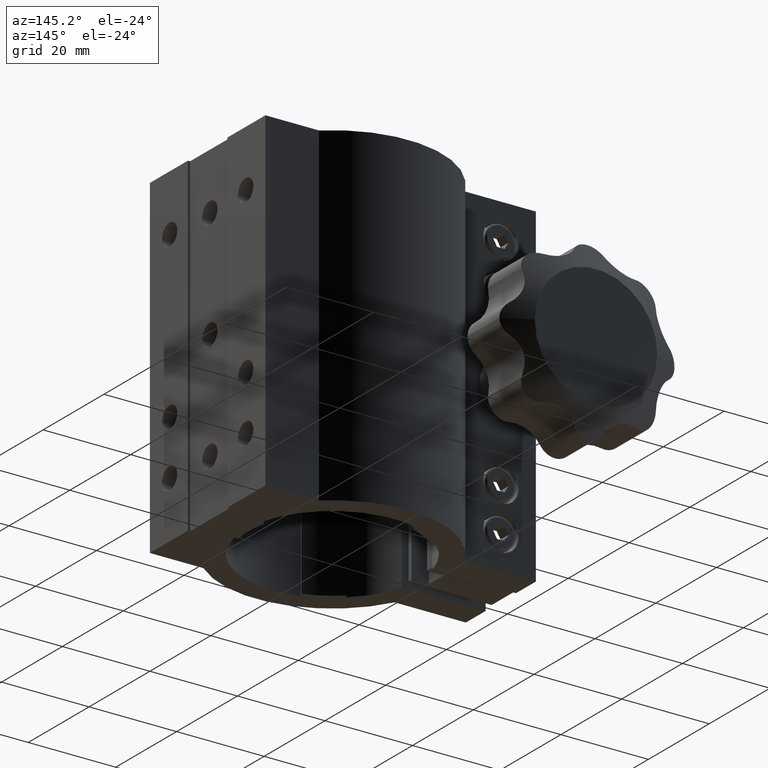
[diagram: clean part render]
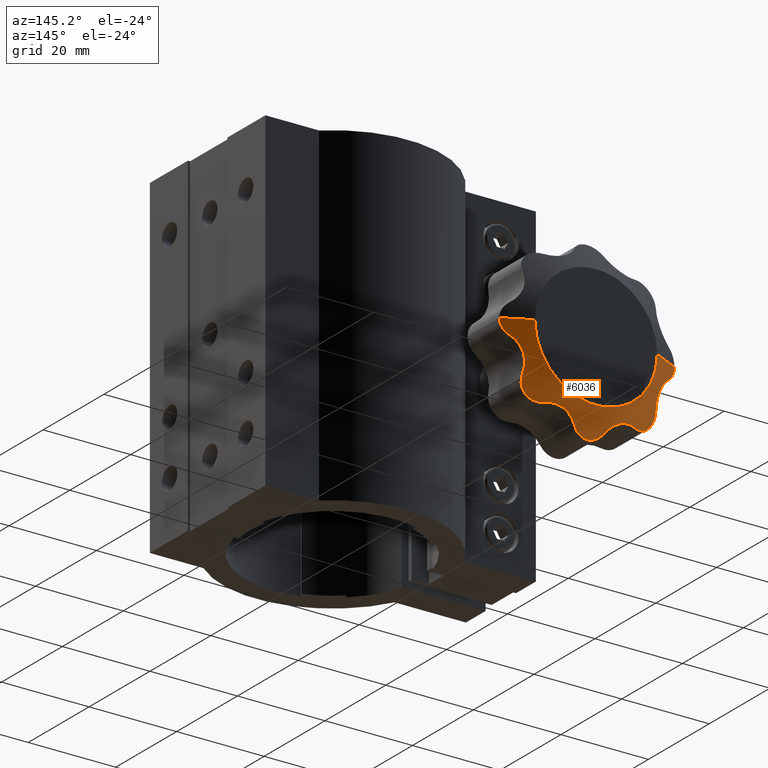
[diagram: same view with one face highlighted and labeled with its STEP entity id]
A machine part, auxiliary view. The second image highlights one B-rep face of the part: STEP entity #6036.
In plain terms, the highlighted conical surface has half-angle 63.435 deg.
Its self-contained STEP definition (entity closure, byte-faithful):
#67 = ORIENTED_EDGE ( 'NONE', *, *, #1330, .T. ) ;
#164 = CARTESIAN_POINT ( 'NONE',  ( -34.13825877744382400, 37.72424744362883300, 18.55445544511340500 ) ) ;
#208 = CARTESIAN_POINT ( 'NONE',  ( -41.29270235043170300, 38.68197548295553600, 22.93565509200134800 ) ) ;
#210 = EDGE_CURVE ( 'NONE', #2266, #10143, #1075, .T. ) ;
#215 = CARTESIAN_POINT ( 'NONE',  ( -34.27574192347811500, 37.75911893758390600, 18.63958989632183700 ) ) ;
#268 = DIRECTION ( 'NONE',  ( -0.8944271909999157400, -0.4472135954999582100, 8.417409745864919000E-017 ) ) ;
#302 = CARTESIAN_POINT ( 'NONE',  ( -35.40478620523411700, 38.22485992281704600, 19.74647206857901700 ) ) ;
#651 = CARTESIAN_POINT ( 'NONE',  ( -34.54019230307984900, 37.83613952477270500, 18.82641046975630400 ) ) ;
#740 = CARTESIAN_POINT ( 'NONE',  ( -45.30747206479043100, 37.56706851643831900, 23.15944995574650600 ) ) ;
#799 = CARTESIAN_POINT ( 'NONE',  ( -47.33547936566709100, 38.24033585891623200, 27.47167209282339000 ) ) ;
#991 = CARTESIAN_POINT ( 'NONE',  ( -51.88119329317200400, 37.58791492571312900, 36.68577337741093200 ) ) ;
#1075 = B_SPLINE_CURVE_WITH_KNOTS ( 'NONE', 3,
 ( #12926, #12766, #12711, #13026, #13076, #13922, #14080, #14193, #14239, #14293, #14344, #14404, #15066, #15117, #15382, #15493, #15609, #15731, #14027, #164, #215, #651, #11683, #3881, #4298, #5228 ),
 .UNSPECIFIED., .F., .F.,
 ( 4, 2, 2, 2, 2, 2, 2, 2, 2, 2, 2, 2, 4 ),
 ( 2.535578231130869400E-007, 0.0009895285573015483800, 0.001978803556779983600, 0.002473441056519201000, 0.002968078556258418100, 0.003957353555736854400, 0.004451991055476061900, 0.004946628555215269400, 0.005441266054954476000, 0.005935903554693682700, 0.006430541054432889300, 0.006925178554172096800, 0.007914453553650511000 ),
 .UNSPECIFIED. ) ;
#1080 = ORIENTED_EDGE ( 'NONE', *, *, #9072, .T. ) ;
#1125 = ORIENTED_EDGE ( 'NONE', *, *, #1673, .T. ) ;
#1128 = CARTESIAN_POINT ( 'NONE',  ( -12.26273394888004700, 37.56529357583939100, 36.85875537139499900 ) ) ;
#1251 = CARTESIAN_POINT ( 'NONE',  ( -16.78629150101523100, 37.98015667156400400, 26.68629150101528300 ) ) ;
#1300 = CARTESIAN_POINT ( 'NONE',  ( -22.86946047692452000, 38.67214242902282000, 22.93569900874312100 ) ) ;
#1330 = EDGE_CURVE ( 'NONE', #1826, #16269, #2067, .T. ) ;
#1430 = EDGE_CURVE ( 'NONE', #7146, #9624, #12757, .T. ) ;
#1493 = CARTESIAN_POINT ( 'NONE',  ( -42.62832790717664700, 38.24033585891623200, 22.76452063433290400 ) ) ;
#1608 = CONICAL_SURFACE ( 'NONE', #7844, 14.00000000000002700, 1.107148717794089500 ) ;
#1673 = EDGE_CURVE ( 'NONE', #16269, #15725, #5315, .T. ) ;
#1678 = CARTESIAN_POINT ( 'NONE',  ( -47.19919841767011800, 38.74450016324943400, 29.12827557199965900 ) ) ;
#1826 = VERTEX_POINT ( 'NONE', #11770 ) ;
#1846 = CARTESIAN_POINT ( 'NONE',  ( -21.52964335520772800, 38.22485992281721000, 22.75596988302155700 ) ) ;
#1997 = CARTESIAN_POINT ( 'NONE',  ( -46.00166590177382600, 37.50024724159747100, 23.61814102786623300 ) ) ;
#2019 = CARTESIAN_POINT ( 'NONE',  ( -21.25090003431771300, 38.12378131236740600, 22.70325044055187300 ) ) ;
#2067 = B_SPLINE_CURVE_WITH_KNOTS ( 'NONE', 3,
 ( #12588, #13736, #13627, #12526 ),
 .UNSPECIFIED., .F., .F.,
 ( 4, 4 ),
 ( 2.141342634865595500E-007, 0.001445184654488001300 ),
 .UNSPECIFIED. ) ;
#2138 = CARTESIAN_POINT ( 'NONE',  ( -20.96848050212808800, 38.03226716162000500, 22.68021743918745500 ) ) ;
#2254 = CARTESIAN_POINT ( 'NONE',  ( -52.05752426620984600, 37.51698547041289800, 37.33173219567211000 ) ) ;
#2266 = VERTEX_POINT ( 'NONE', #13395 ) ;
#2392 = CARTESIAN_POINT ( 'NONE',  ( -12.43301073186956200, 37.63407384865928400, 36.39367525027044100 ) ) ;
#2419 = ORIENTED_EDGE ( 'NONE', *, *, #12149, .F. ) ;
#2529 = ORIENTED_EDGE ( 'NONE', *, *, #210, .T. ) ;
#2573 = CARTESIAN_POINT ( 'NONE',  ( -24.95603898682053400, 39.03961434932760700, 22.64445897357252200 ) ) ;
#2617 = CARTESIAN_POINT ( 'NONE',  ( -20.10427503861103200, 37.79336269671962600, 22.73410328289345000 ) ) ;
#2670 = CARTESIAN_POINT ( 'NONE',  ( -19.53860324330462100, 37.67028065277789000, 22.87470230777547500 ) ) ;
#2749 = CARTESIAN_POINT ( 'NONE',  ( -15.82382242778244200, 38.96184166140069700, 32.79438930931748800 ) ) ;
#2762 = CARTESIAN_POINT ( 'NONE',  ( -19.26113412668364000, 37.61997098023989800, 22.97646615222423300 ) ) ;
#2777 = CARTESIAN_POINT ( 'NONE',  ( -18.72795586698636700, 37.54409824499444400, 23.24359436756052200 ) ) ;
#3082 = CARTESIAN_POINT ( 'NONE',  ( -47.19919841767011100, 38.67138711132069100, 28.84621229782713300 ) ) ;
#3109 = CARTESIAN_POINT ( 'NONE',  ( -18.47935679384912100, 37.51941664412007100, 23.40497773994198400 ) ) ;
#3162 = CARTESIAN_POINT ( 'NONE',  ( -18.13349673707108400, 37.50185774314778100, 23.68880557513929500 ) ) ;
#3258 = CARTESIAN_POINT ( 'NONE',  ( -42.94026814796041700, 38.12596980974666400, 22.70205094417410400 ) ) ;
#3314 = CARTESIAN_POINT ( 'NONE',  ( -46.68478337521379000, 37.51702702024484600, 24.36072772368681100 ) ) ;
#3389 = CARTESIAN_POINT ( 'NONE',  ( -18.02204321241741200, 37.49930611596555300, 23.79123233458614500 ) ) ;
#3446 = CARTESIAN_POINT ( 'NONE',  ( -17.81326709489613300, 37.50102194031777700, 24.00607470777605800 ) ) ;
#3449 = CARTESIAN_POINT ( 'NONE',  ( -32.09999999999995900, 40.50000000000009200, 37.99999999999997900 ) ) ;
#3532 = CIRCLE ( 'NONE', #12653, 14.00000000000002700 ) ;
#3549 = CARTESIAN_POINT ( 'NONE',  ( -52.09963865927248600, 37.50018067036381800, 37.99999999999997900 ) ) ;
#3621 = CARTESIAN_POINT ( 'NONE',  ( -47.19919841767011100, 38.67138711132069100, 28.84621229782713300 ) ) ;
#3674 = CARTESIAN_POINT ( 'NONE',  ( -12.65513164865500800, 37.72452414048576200, 35.96060845117474300 ) ) ;
#3763 = B_SPLINE_CURVE_WITH_KNOTS ( 'NONE', 3,
 ( #10969, #12246, #4740, #13517, #6030, #14775, #7287, #16067, #8503, #991, #9795, #2254, #11030, #3549 ),
 .UNSPECIFIED., .F., .F.,
 ( 4, 2, 2, 2, 2, 2, 4 ),
 ( 2.519870533801398400E-007, 0.001001453526276143800, 0.001502054295887525700, 0.002002655065498907400, 0.002503255835110289300, 0.003003856604721671200, 0.004005058143944461100 ),
 .UNSPECIFIED. ) ;
#3843 = CARTESIAN_POINT ( 'NONE',  ( -26.89132669031028300, 38.96229445392995000, 21.72577786445342700 ) ) ;
#3881 = CARTESIAN_POINT ( 'NONE',  ( -35.02102367627738000, 38.01223660148920700, 19.24879063320790700 ) ) ;
#3993 = CARTESIAN_POINT ( 'NONE',  ( -16.74141061492611700, 39.04038282519002900, 30.86623930095832000 ) ) ;
#4008 = CARTESIAN_POINT ( 'NONE',  ( -17.71575373318423300, 37.50522552208781900, 24.11845504438325000 ) ) ;
#4030 = CARTESIAN_POINT ( 'NONE',  ( -17.53406576480386300, 37.52014831606369700, 24.35283612059560100 ) ) ;
#4067 = ORIENTED_EDGE ( 'NONE', *, *, #4842, .T. ) ;
#4193 = CARTESIAN_POINT ( 'NONE',  ( -17.44989216485911500, 37.53086793582882300, 24.47483759213882600 ) ) ;
#4284 = CARTESIAN_POINT ( 'NONE',  ( -16.85596988302094700, 38.22485992281610100, 27.42964335520466800 ) ) ;
#4292 = CARTESIAN_POINT ( 'NONE',  ( -17.29498128797716900, 37.55893272981352700, 24.72852698051643800 ) ) ;
#4298 = CARTESIAN_POINT ( 'NONE',  ( -35.22739763615313500, 38.11267213914771200, 19.48633271645867600 ) ) ;
#4353 = CARTESIAN_POINT ( 'NONE',  ( -17.22387635409282700, 37.57643872661848400, 24.86114526933706900 ) ) ;
#4410 = CARTESIAN_POINT ( 'NONE',  ( -17.03595072964978400, 37.63783749370312400, 25.26404472820857100 ) ) ;
#4502 = CARTESIAN_POINT ( 'NONE',  ( -43.73945824390314400, 37.88685030365030600, 22.69669351951544200 ) ) ;
#4557 = CARTESIAN_POINT ( 'NONE',  ( -47.01633345922389400, 37.58778657505550300, 24.94105235144984800 ) ) ;
#4740 = CARTESIAN_POINT ( 'NONE',  ( -50.82465163034925100, 38.02346039514780800, 35.05431335803857000 ) ) ;
#4842 = EDGE_CURVE ( 'NONE', #9818, #11074, #3532, .T. ) ;
#4875 = ORIENTED_EDGE ( 'NONE', *, *, #1430, .T. ) ;
#4931 = CARTESIAN_POINT ( 'NONE',  ( -12.92700158500896100, 37.83638424736710700, 35.55904693091230200 ) ) ;
#5093 = CARTESIAN_POINT ( 'NONE',  ( -27.94840457374428400, 38.65869961730823000, 20.80943283846006500 ) ) ;
#5114 = VERTEX_POINT ( 'NONE', #4284 ) ;
#5173 = CARTESIAN_POINT ( 'NONE',  ( -16.94279115474834200, 37.69049428759804200, 25.54075307990759900 ) ) ;
#5193 = CARTESIAN_POINT ( 'NONE',  ( -13.84647206857898800, 38.22485992281687600, 34.69521379476602600 ) ) ;
#5222 = CARTESIAN_POINT ( 'NONE',  ( -36.22092508249641400, 38.67023647834084000, 20.81617838025024300 ) ) ;
#5228 = CARTESIAN_POINT ( 'NONE',  ( -35.40478620523411700, 38.22485992281704600, 19.74647206857901700 ) ) ;
#5242 = CARTESIAN_POINT ( 'NONE',  ( -18.09999999999993400, 40.50000000000009200, 37.99999999999997900 ) ) ;
#5243 = CARTESIAN_POINT ( 'NONE',  ( -17.00406875406515900, 38.74575812781804300, 29.12517083562085000 ) ) ;
#5315 = B_SPLINE_CURVE_WITH_KNOTS ( 'NONE', 3,
 ( #3082, #1678, #14518, #12834, #11848, #11740, #11532, #11479, #10757, #10695, #10486, #10286, #10232, #9587, #9529, #9471 ),
 .UNSPECIFIED., .F., .F.,
 ( 4, 2, 2, 2, 2, 2, 2, 4 ),
 ( 0.001445184654488001300, 0.002318056163042964300, 0.003190927671597927100, 0.004063799180152889900, 0.004936670688707842300, 0.005809542197262796400, 0.006682413705817748800, 0.008428156722927654400 ),
 .UNSPECIFIED. ) ;
#5560 = CARTESIAN_POINT ( 'NONE',  ( -16.78629150101523100, 37.98015667156400400, 26.68629150101528300 ) ) ;
#5633 = EDGE_CURVE ( 'NONE', #9720, #1826, #12857, .T. ) ;
#5767 = CARTESIAN_POINT ( 'NONE',  ( -44.22546935347902800, 37.76518380246606200, 22.76647890536094800 ) ) ;
#5823 = CARTESIAN_POINT ( 'NONE',  ( -47.20479314949077600, 37.66557426353966800, 25.40112276749174600 ) ) ;
#5848 = CARTESIAN_POINT ( 'NONE',  ( -16.78629150101523100, 37.89551921886262400, 26.40142105751484200 ) ) ;
#6030 = CARTESIAN_POINT ( 'NONE',  ( -51.25541067797122700, 37.84370096366776400, 35.53681198573129100 ) ) ;
#6036 = ADVANCED_FACE ( 'NONE', ( #12825 ), #1608, .T. ) ;
#6224 = CARTESIAN_POINT ( 'NONE',  ( -13.34914336907249300, 38.01238578080722900, 35.07867091265918400 ) ) ;
#6291 = CARTESIAN_POINT ( 'NONE',  ( -16.85596988302094700, 38.22485992281610100, 27.42964335520466800 ) ) ;
#6390 = CARTESIAN_POINT ( 'NONE',  ( -28.60963906092754200, 38.34719524211941900, 20.02871853246509200 ) ) ;
#6414 = VERTEX_POINT ( 'NONE', #10510 ) ;
#6481 = ORIENTED_EDGE ( 'NONE', *, *, #14304, .T. ) ;
#6524 = CARTESIAN_POINT ( 'NONE',  ( -37.89220971458132700, 39.03813465946317500, 22.08227942649879300 ) ) ;
#6546 = CARTESIAN_POINT ( 'NONE',  ( -16.96910337782800200, 38.45966632413284000, 28.09830956798033300 ) ) ;
#6577 = ORIENTED_EDGE ( 'NONE', *, *, #14218, .T. ) ;
#6687 = CARTESIAN_POINT ( 'NONE',  ( -21.52964335520772800, 38.22485992281721000, 22.75596988302155700 ) ) ;
#6741 = CARTESIAN_POINT ( 'NONE',  ( -16.81742696439634300, 37.81913595337685800, 26.10934481720776600 ) ) ;
#6750 = ORIENTED_EDGE ( 'NONE', *, *, #5633, .T. ) ;
#7033 = CARTESIAN_POINT ( 'NONE',  ( -44.69828612999257400, 37.66569268401091400, 22.89502649657288600 ) ) ;
#7094 = CARTESIAN_POINT ( 'NONE',  ( -47.39676900332202800, 37.84158332470200700, 26.20088793460285400 ) ) ;
#7120 = CARTESIAN_POINT ( 'NONE',  ( -16.78629150101523100, 37.98015667156400400, 26.68629150101528300 ) ) ;
#7146 = VERTEX_POINT ( 'NONE', #7120 ) ;
#7175 = DIRECTION ( 'NONE',  ( -5.721188726105498500E-018, -1.000000000000000000, 5.431194649527626500E-017 ) ) ;
#7287 = CARTESIAN_POINT ( 'NONE',  ( -51.53300192077794200, 37.72941588972672400, 35.94127359051846300 ) ) ;
#7300 = CARTESIAN_POINT ( 'NONE',  ( -13.84647206857898800, 38.22485992281687600, 34.69521379476602600 ) ) ;
#7411 = CARTESIAN_POINT ( 'NONE',  ( -12.11050873953518300, 37.50420100701824600, 37.66657105954493500 ) ) ;
#7458 = CARTESIAN_POINT ( 'NONE',  ( -32.09999999999995900, 40.50000000000009200, 37.99999999999997900 ) ) ;
#7476 = CARTESIAN_POINT ( 'NONE',  ( -13.84647206857898800, 38.22485992281687600, 34.69521379476602600 ) ) ;
#7540 = CARTESIAN_POINT ( 'NONE',  ( -16.80962284197196500, 38.13599907208919100, 27.18459280970823500 ) ) ;
#7577 = CARTESIAN_POINT ( 'NONE',  ( -21.52964335520772800, 38.22485992281721000, 22.75596988302155700 ) ) ;
#7745 = EDGE_LOOP ( 'NONE', ( #2419, #4067, #14888, #14176, #6481, #6577, #4875, #1080, #2529, #13244, #6750, #67, #1125, #14593 ) ) ;
#7770 = CARTESIAN_POINT ( 'NONE',  ( -39.89794573085681900, 38.96594691532602900, 22.80387124742840400 ) ) ;
#7787 = CARTESIAN_POINT ( 'NONE',  ( -16.85596988302094700, 38.22485992281610100, 27.42964335520466800 ) ) ;
#7844 = AXIS2_PLACEMENT_3D ( 'NONE', #3449, #7175, #12186 ) ;
#8068 = CARTESIAN_POINT ( 'NONE',  ( -42.62832790717664700, 38.24033585891623200, 22.76452063433290400 ) ) ;
#8205 = VERTEX_POINT ( 'NONE', #7300 ) ;
#8265 = CARTESIAN_POINT ( 'NONE',  ( -45.15694850998777100, 37.58808820424991400, 23.08272396788173000 ) ) ;
#8319 = CARTESIAN_POINT ( 'NONE',  ( -47.39795324385065100, 38.12596214254290300, 27.15971093928270700 ) ) ;
#8333 = B_SPLINE_CURVE_WITH_KNOTS ( 'NONE', 3,
 ( #7577, #15076, #1300, #10086, #2573, #11323, #3843, #12623, #5093, #13868, #6390, #15130 ),
 .UNSPECIFIED., .F., .F.,
 ( 4, 2, 2, 2, 2, 4 ),
 ( 2.145863560860655200E-007, 0.002128633184701740400, 0.004257051783047394700, 0.006385470381393048900, 0.007449679680565873500, 0.008513888979738697100 ),
 .UNSPECIFIED. ) ;
#8503 = CARTESIAN_POINT ( 'NONE',  ( -51.75941062088805500, 37.63718249476199400, 36.37724670895964600 ) ) ;
#8637 = CARTESIAN_POINT ( 'NONE',  ( -12.18199555004974700, 37.53283897366456000, 37.17763075229706300 ) ) ;
#8684 = DIRECTION ( 'NONE',  ( 1.000000000000000000, 0.0000000000000000000, 0.0000000000000000000 ) ) ;
#8751 = VERTEX_POINT ( 'NONE', #15643 ) ;
#8760 = CARTESIAN_POINT ( 'NONE',  ( -16.78629150101523100, 38.05457517648059700, 26.93676728713118300 ) ) ;
#8895 = CARTESIAN_POINT ( 'NONE',  ( -20.39658133783738900, 37.86728663349224200, 22.69505758032207200 ) ) ;
#8897 = VECTOR ( 'NONE', #12868, 1000.000000000000000 ) ;
#8940 = B_SPLINE_CURVE_WITH_KNOTS ( 'NONE', 3,
 ( #13653, #14893, #7411, #16204, #8637, #1128, #9924, #2392, #11158, #3674, #12439, #4931, #13707, #6224, #14955, #7476 ),
 .UNSPECIFIED., .F., .F.,
 ( 4, 2, 2, 2, 2, 2, 2, 4 ),
 ( 0.003960287535763634700, 0.004454558287999424600, 0.004948829040235213700, 0.005443099792471003600, 0.005937370544706792700, 0.006431641296942583500, 0.006925912049178372500, 0.007914453553649942000 ),
 .UNSPECIFIED. ) ;
#9020 = CARTESIAN_POINT ( 'NONE',  ( -41.96868897340812800, 38.48217800965616700, 22.89662106390778000 ) ) ;
#9072 = EDGE_CURVE ( 'NONE', #9624, #2266, #8333, .T. ) ;
#9471 = CARTESIAN_POINT ( 'NONE',  ( -50.31776283181113700, 38.24033585891623200, 34.67154128362934500 ) ) ;
#9529 = CARTESIAN_POINT ( 'NONE',  ( -49.85641633162007500, 38.43962883246756200, 34.36414461511201100 ) ) ;
#9547 = CARTESIAN_POINT ( 'NONE',  ( -45.73824124013596300, 37.51709815624121100, 23.41443786194441000 ) ) ;
#9587 = CARTESIAN_POINT ( 'NONE',  ( -49.43210726996741000, 38.61011625043930500, 34.00363604922226600 ) ) ;
#9624 = VERTEX_POINT ( 'NONE', #6687 ) ;
#9720 = VERTEX_POINT ( 'NONE', #8068 ) ;
#9795 = CARTESIAN_POINT ( 'NONE',  ( -51.93334830073360600, 37.56690679288043100, 36.84656257091754800 ) ) ;
#9818 = VERTEX_POINT ( 'NONE', #14618 ) ;
#9924 = CARTESIAN_POINT ( 'NONE',  ( -12.31343870608171500, 37.58571358947044400, 36.70036810535545900 ) ) ;
#10086 = CARTESIAN_POINT ( 'NONE',  ( -24.27192648757830900, 38.96184153804584600, 22.81008190152809300 ) ) ;
#10143 = VERTEX_POINT ( 'NONE', #302 ) ;
#10224 = CARTESIAN_POINT ( 'NONE',  ( -46.09999999999998700, 40.50000000000009200, 37.99999999999997900 ) ) ;
#10232 = CARTESIAN_POINT ( 'NONE',  ( -48.85399775504214400, 38.81058220147537700, 33.37499517148441400 ) ) ;
#10239 = CARTESIAN_POINT ( 'NONE',  ( -14.92095314688409900, 38.67214230809198500, 33.87490815882829100 ) ) ;
#10286 = CARTESIAN_POINT ( 'NONE',  ( -48.67039366449297700, 38.86817951116550100, 33.14918560032052900 ) ) ;
#10336 = B_SPLINE_CURVE_WITH_KNOTS ( 'NONE', 3,
 ( #11462, #12760, #5222, #14021, #6524, #15265, #7770, #208, #9020, #1493 ),
 .UNSPECIFIED., .F., .F.,
 ( 4, 2, 2, 2, 4 ),
 ( 2.514968968866191000E-007, 0.002118744996039079900, 0.004237238495181272700, 0.006355731994323465500, 0.008474225493465659100 ),
 .UNSPECIFIED. ) ;
#10486 = CARTESIAN_POINT ( 'NONE',  ( -48.33500304504649800, 38.95881344617964700, 32.67954946959076100 ) ) ;
#10510 = CARTESIAN_POINT ( 'NONE',  ( -12.10000000000003200, 37.50000000000011400, 37.99999999999997900 ) ) ;
#10695 = CARTESIAN_POINT ( 'NONE',  ( -48.18181524195388500, 38.99239717512220700, 32.43446891246430400 ) ) ;
#10712 = CARTESIAN_POINT ( 'NONE',  ( -42.62832790717664700, 38.24033585891623200, 22.76452063433290400 ) ) ;
#10757 = CARTESIAN_POINT ( 'NONE',  ( -47.90504890645113500, 39.03472159707339300, 31.92325109288680800 ) ) ;
#10777 = CARTESIAN_POINT ( 'NONE',  ( -46.47931321446086600, 37.50011448571302700, 24.09531898611162900 ) ) ;
#10969 = CARTESIAN_POINT ( 'NONE',  ( -50.31776283181113700, 38.24033585891623200, 34.67154128362934500 ) ) ;
#10970 = B_SPLINE_CURVE_WITH_KNOTS ( 'NONE', 3,
 ( #5193, #11439, #10239, #2749, #11488, #3993, #12783, #5243, #14041, #6546, #15289, #7787 ),
 .UNSPECIFIED., .F., .F.,
 ( 4, 2, 2, 2, 2, 4 ),
 ( 2.514968969110977100E-007, 0.002128670117941410600, 0.004257088738985910700, 0.006385507360030409500, 0.007449716670552660600, 0.008513925981074910900 ),
 .UNSPECIFIED. ) ;
#11030 = CARTESIAN_POINT ( 'NONE',  ( -52.09963865927250000, 37.50018067036381100, 37.66222527571012100 ) ) ;
#11074 = VERTEX_POINT ( 'NONE', #5242 ) ;
#11158 = CARTESIAN_POINT ( 'NONE',  ( -12.50151586287644400, 37.66186732320739600, 36.24581991734358200 ) ) ;
#11200 = LINE ( 'NONE', #10224, #14554 ) ;
#11323 = CARTESIAN_POINT ( 'NONE',  ( -26.28416735945040400, 39.04038281899816100, 22.09550692938513100 ) ) ;
#11439 = CARTESIAN_POINT ( 'NONE',  ( -14.41066563442168800, 38.46940080767107200, 34.32426115510119800 ) ) ;
#11462 = CARTESIAN_POINT ( 'NONE',  ( -35.40478620523411700, 38.22485992281704600, 19.74647206857901700 ) ) ;
#11479 = CARTESIAN_POINT ( 'NONE',  ( -47.78056681594023300, 39.04337036135621700, 31.65460809510745600 ) ) ;
#11488 = CARTESIAN_POINT ( 'NONE',  ( -16.19044925722372600, 39.03961434304878300, 32.19353673450456200 ) ) ;
#11532 = CARTESIAN_POINT ( 'NONE',  ( -47.56825035853535900, 39.03421187767037300, 31.10816862586799700 ) ) ;
#11590 = EDGE_CURVE ( 'NONE', #10143, #9720, #10336, .T. ) ;
#11633 = EDGE_CURVE ( 'NONE', #11074, #6414, #12644, .T. ) ;
#11683 = CARTESIAN_POINT ( 'NONE',  ( -34.66672438758036600, 37.87824560731832700, 18.92797965623197600 ) ) ;
#11740 = CARTESIAN_POINT ( 'NONE',  ( -47.48044118487156600, 39.01670993358931100, 30.83155257149975600 ) ) ;
#11770 = CARTESIAN_POINT ( 'NONE',  ( -47.33547936566709100, 38.24033585891623200, 27.47167209282339000 ) ) ;
#11848 = CARTESIAN_POINT ( 'NONE',  ( -47.33982646533559800, 38.95749352928440600, 30.27179680078582200 ) ) ;
#11987 = CARTESIAN_POINT ( 'NONE',  ( -43.25710625937500700, 38.02355978083554800, 22.67678188941500400 ) ) ;
#12041 = CARTESIAN_POINT ( 'NONE',  ( -46.93961310875494100, 37.56684448148201500, 24.79080392035382700 ) ) ;
#12149 = EDGE_CURVE ( 'NONE', #9818, #8751, #11200, .T. ) ;
#12186 = DIRECTION ( 'NONE',  ( 1.000000000000000000, 0.0000000000000000000, 0.0000000000000000000 ) ) ;
#12246 = CARTESIAN_POINT ( 'NONE',  ( -50.58263873843442600, 38.12591447058601800, 34.84802895879927600 ) ) ;
#12439 = CARTESIAN_POINT ( 'NONE',  ( -12.74024568565808500, 37.75938828361680100, 35.82325431566175000 ) ) ;
#12490 = EDGE_CURVE ( 'NONE', #15725, #8751, #3763, .T. ) ;
#12526 = CARTESIAN_POINT ( 'NONE',  ( -47.19919841767011100, 38.67138711132069100, 28.84621229782713300 ) ) ;
#12588 = CARTESIAN_POINT ( 'NONE',  ( -47.33547936566709100, 38.24033585891623200, 27.47167209282339000 ) ) ;
#12623 = CARTESIAN_POINT ( 'NONE',  ( -27.70101675018860400, 38.74575806462180300, 21.05011257352799700 ) ) ;
#12644 = LINE ( 'NONE', #14073, #8897 ) ;
#12653 = AXIS2_PLACEMENT_3D ( 'NONE', #7458, #16246, #8684 ) ;
#12711 = CARTESIAN_POINT ( 'NONE',  ( -29.17884699603552800, 38.01230968559990200, 19.24896242957108000 ) ) ;
#12757 = B_SPLINE_CURVE_WITH_KNOTS ( 'NONE', 3,
 ( #5560, #5848, #6741, #5173, #4410, #4353, #4292, #4193, #4030, #4008, #3446, #3389, #3162, #3109, #2777, #2762, #2670, #2617, #8895, #2138, #2019, #1846 ),
 .UNSPECIFIED., .F., .F.,
 ( 4, 2, 2, 2, 2, 2, 2, 2, 2, 2, 4 ),
 ( 0.0007839105829735832200, 0.001675223161873554000, 0.002566535740773524500, 0.003012192030223515900, 0.003457848319673507200, 0.003903504609123498500, 0.004349160898573490300, 0.005240473477473487700, 0.006131786056373485100, 0.007023098635273483300, 0.007914411214173480700 ),
 .UNSPECIFIED. ) ;
#12760 = CARTESIAN_POINT ( 'NONE',  ( -35.77400903943106400, 38.46826047838232700, 20.30803471874467500 ) ) ;
#12766 = CARTESIAN_POINT ( 'NONE',  ( -28.97257494447850600, 38.11268948027735300, 19.48637292681023700 ) ) ;
#12783 = CARTESIAN_POINT ( 'NONE',  ( -16.90929895912284000, 38.96229440099512700, 30.17547516606979800 ) ) ;
#12825 = FACE_OUTER_BOUND ( 'NONE', #7745, .T. ) ;
#12834 = CARTESIAN_POINT ( 'NONE',  ( -47.28702618948062800, 38.91577800137336100, 29.98865584032338600 ) ) ;
#12857 = B_SPLINE_CURVE_WITH_KNOTS ( 'NONE', 3,
 ( #10712, #3258, #11987, #4502, #13274, #5767, #14535, #7033, #15816, #8265, #740, #9547, #1997, #10777, #3314, #12041, #4557, #13329, #5823, #14592, #7094, #15874, #8319, #799 ),
 .UNSPECIFIED., .F., .F.,
 ( 4, 2, 2, 2, 2, 2, 2, 2, 2, 2, 2, 4 ),
 ( 2.138698642105214700E-007, 0.001000929719184350100, 0.001501287643844419600, 0.002001645568504489000, 0.002502003493164558300, 0.003002361417824628000, 0.004003077267144760200, 0.005003793116464891900, 0.005504151041124964200, 0.006004508965785036600, 0.007005224815105182100, 0.008005940664425328600 ),
 .UNSPECIFIED. ) ;
#12868 = DIRECTION ( 'NONE',  ( 0.8944271909999157400, -0.4472135954999582100, 7.393972393569904000E-017 ) ) ;
#12926 = CARTESIAN_POINT ( 'NONE',  ( -28.79521379476578600, 38.22485992281715300, 19.74647206857922700 ) ) ;
#13026 = CARTESIAN_POINT ( 'NONE',  ( -29.65075012321523200, 37.83379426854032300, 18.82155421195327700 ) ) ;
#13076 = CARTESIAN_POINT ( 'NONE',  ( -29.91857331750085400, 37.75572514801560000, 18.63162735225914800 ) ) ;
#13244 = ORIENTED_EDGE ( 'NONE', *, *, #11590, .T. ) ;
#13274 = CARTESIAN_POINT ( 'NONE',  ( -43.90255016953156500, 37.84386468517852400, 22.71326742720492600 ) ) ;
#13329 = CARTESIAN_POINT ( 'NONE',  ( -47.14878044121588400, 37.63717544867572000, 25.24615127184601000 ) ) ;
#13395 = CARTESIAN_POINT ( 'NONE',  ( -28.79521379476578600, 38.22485992281715300, 19.74647206857922700 ) ) ;
#13517 = CARTESIAN_POINT ( 'NONE',  ( -51.15176998057168600, 37.88670112199526600, 35.40968513224928700 ) ) ;
#13627 = CARTESIAN_POINT ( 'NONE',  ( -47.19919841767011100, 38.55035417159789500, 28.37927860595759100 ) ) ;
#13653 = CARTESIAN_POINT ( 'NONE',  ( -12.10000000000003200, 37.50000000000011400, 37.99999999999997900 ) ) ;
#13707 = CARTESIAN_POINT ( 'NONE',  ( -13.02851694067564900, 37.87846908720887700, 35.43264031028012800 ) ) ;
#13736 = CARTESIAN_POINT ( 'NONE',  ( -47.24538852200785800, 38.40526918625404600, 27.92153760987732300 ) ) ;
#13868 = CARTESIAN_POINT ( 'NONE',  ( -28.40239299428871400, 38.45966624540682900, 20.29928775162304400 ) ) ;
#13880 = CARTESIAN_POINT ( 'NONE',  ( -50.31776283181113700, 38.24033585891623200, 34.67154128362934500 ) ) ;
#13922 = CARTESIAN_POINT ( 'NONE',  ( -30.34560456405140300, 37.66191565780253800, 18.40163428476000400 ) ) ;
#14021 = CARTESIAN_POINT ( 'NONE',  ( -37.29467377656511900, 38.95968701442948400, 21.71595868580778100 ) ) ;
#14027 = CARTESIAN_POINT ( 'NONE',  ( -33.85277306221461700, 37.66158631352336500, 18.40082471725671800 ) ) ;
#14041 = CARTESIAN_POINT ( 'NONE',  ( -17.00881211451167400, 38.65869970858120300, 28.78005500583695000 ) ) ;
#14073 = CARTESIAN_POINT ( 'NONE',  ( -18.09999999999993400, 40.50000000000009200, 37.99999999999997900 ) ) ;
#14080 = CARTESIAN_POINT ( 'NONE',  ( -30.49297567660139000, 37.63421277690584800, 18.33335283873527300 ) ) ;
#14176 = ORIENTED_EDGE ( 'NONE', *, *, #16264, .T. ) ;
#14193 = CARTESIAN_POINT ( 'NONE',  ( -30.79814125205138400, 37.58603638219781800, 18.21423820326804600 ) ) ;
#14218 = EDGE_CURVE ( 'NONE', #5114, #7146, #15405, .T. ) ;
#14239 = CARTESIAN_POINT ( 'NONE',  ( -30.95713575936925500, 37.56547649085311500, 18.16318857168530000 ) ) ;
#14293 = CARTESIAN_POINT ( 'NONE',  ( -31.43727512282957200, 37.51655466047860400, 18.04148535773647700 ) ) ;
#14304 = EDGE_CURVE ( 'NONE', #8205, #5114, #10970, .T. ) ;
#14344 = CARTESIAN_POINT ( 'NONE',  ( -31.76383833199641800, 37.50009922414832900, 18.00024806035972300 ) ) ;
#14404 = CARTESIAN_POINT ( 'NONE',  ( -32.26363370570189200, 37.49995104715775800, 17.99987761789955300 ) ) ;
#14518 = CARTESIAN_POINT ( 'NONE',  ( -47.21643865702763800, 38.80913972486019500, 29.41574569026141400 ) ) ;
#14535 = CARTESIAN_POINT ( 'NONE',  ( -44.38462221413448800, 37.72960049356537800, 22.80284501860698400 ) ) ;
#14554 = VECTOR ( 'NONE', #268, 1000.000000000000000 ) ;
#14592 = CARTESIAN_POINT ( 'NONE',  ( -47.34347505883442200, 37.76170017255982700, 25.87294497304554900 ) ) ;
#14593 = ORIENTED_EDGE ( 'NONE', *, *, #12490, .T. ) ;
#14618 = CARTESIAN_POINT ( 'NONE',  ( -46.09999999999995900, 40.50000000000009200, 37.99999999999997900 ) ) ;
#14775 = CARTESIAN_POINT ( 'NONE',  ( -51.44616525070425400, 37.76500397221780500, 35.80293608302552100 ) ) ;
#14888 = ORIENTED_EDGE ( 'NONE', *, *, #11633, .T. ) ;
#14893 = CARTESIAN_POINT ( 'NONE',  ( -12.10000000000003200, 37.50000000000012100, 37.83350509056437300 ) ) ;
#14955 = CARTESIAN_POINT ( 'NONE',  ( -13.58652559600770700, 38.11275532044631800, 34.87247083961990100 ) ) ;
#15066 = CARTESIAN_POINT ( 'NONE',  ( -32.43073438627175200, 37.50410910604388400, 18.01027900939492800 ) ) ;
#15076 = CARTESIAN_POINT ( 'NONE',  ( -22.19089210380487700, 38.46940100192954000, 22.89261196087018700 ) ) ;
#15117 = CARTESIAN_POINT ( 'NONE',  ( -32.75840555617480000, 37.52046013489456300, 18.05110636497569100 ) ) ;
#15130 = CARTESIAN_POINT ( 'NONE',  ( -28.79521379476578600, 38.22485992281715300, 19.74647206857922700 ) ) ;
#15265 = CARTESIAN_POINT ( 'NONE',  ( -39.21091180426165600, 39.04180022587667100, 22.63411673686891800 ) ) ;
#15289 = CARTESIAN_POINT ( 'NONE',  ( -16.92432712855949400, 38.34719525942918500, 27.76044294330693400 ) ) ;
#15382 = CARTESIAN_POINT ( 'NONE',  ( -32.92010242349280700, 37.53264634346349700, 18.08151545462372300 ) ) ;
#15405 = B_SPLINE_CURVE_WITH_KNOTS ( 'NONE', 3,
 ( #6291, #7540, #8760, #1251 ),
 .UNSPECIFIED., .F., .F.,
 ( 4, 4 ),
 ( 2.132076626128390300E-007, 0.0007839105829735832200 ),
 .UNSPECIFIED. ) ;
#15493 = CARTESIAN_POINT ( 'NONE',  ( -33.23925231646453000, 37.56505322317978800, 18.16213688665141000 ) ) ;
#15609 = CARTESIAN_POINT ( 'NONE',  ( -33.39777020126911800, 37.58545362428027700, 18.21279430084788900 ) ) ;
#15643 = CARTESIAN_POINT ( 'NONE',  ( -52.09963865927248600, 37.50018067036381800, 37.99999999999997900 ) ) ;
#15725 = VERTEX_POINT ( 'NONE', #13880 ) ;
#15731 = CARTESIAN_POINT ( 'NONE',  ( -33.70477250926371900, 37.63379586593654800, 18.33232502850870200 ) ) ;
#15816 = CARTESIAN_POINT ( 'NONE',  ( -44.85279802072813700, 37.63736774476475200, 22.95083891127137600 ) ) ;
#15874 = CARTESIAN_POINT ( 'NONE',  ( -47.42317277148751500, 38.02363117736472700, 26.84308388291382400 ) ) ;
#16067 = CARTESIAN_POINT ( 'NONE',  ( -51.68962325819563800, 37.66550537367241000, 36.22842965666536200 ) ) ;
#16204 = CARTESIAN_POINT ( 'NONE',  ( -12.15151395416763500, 37.52062347683806800, 37.33918737790107700 ) ) ;
#16246 = DIRECTION ( 'NONE',  ( -5.721188726105498500E-018, -1.000000000000000000, 5.431194649527626500E-017 ) ) ;
#16264 = EDGE_CURVE ( 'NONE', #6414, #8205, #8940, .T. ) ;
#16269 = VERTEX_POINT ( 'NONE', #3621 ) ;